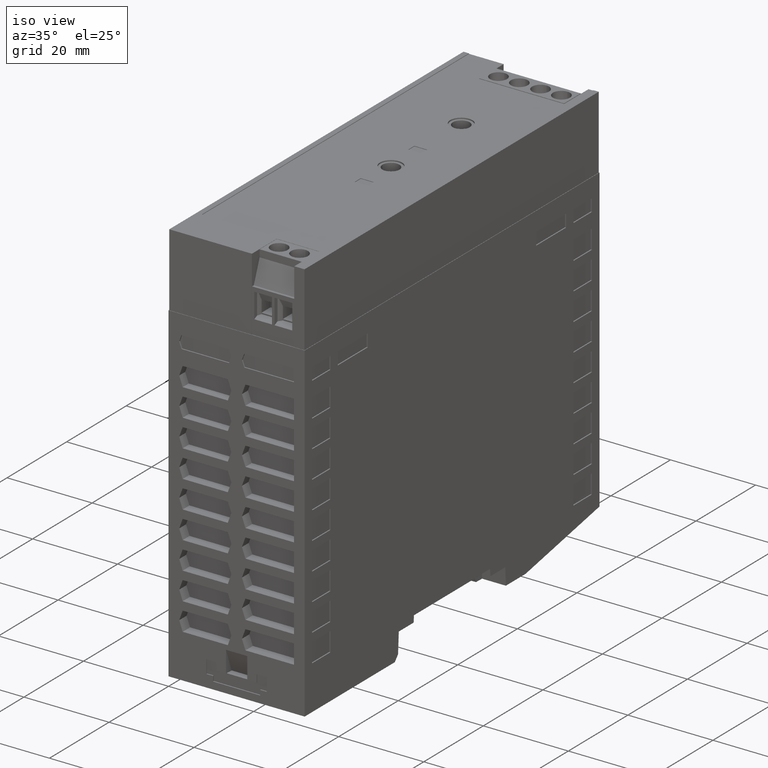
[diagram: clean part render]
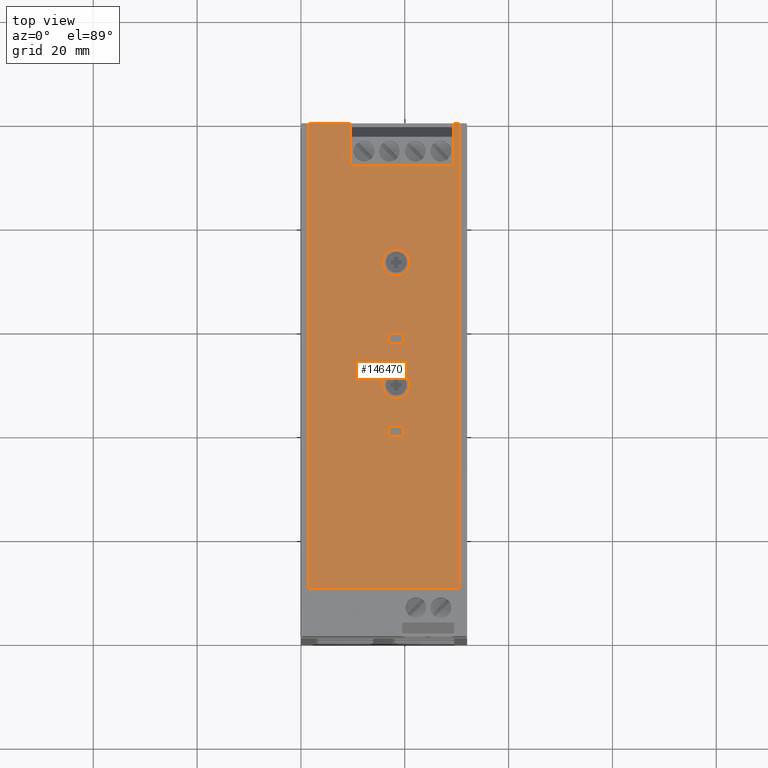
[diagram: tour spotlight — one face highlighted and labeled with its STEP entity id]
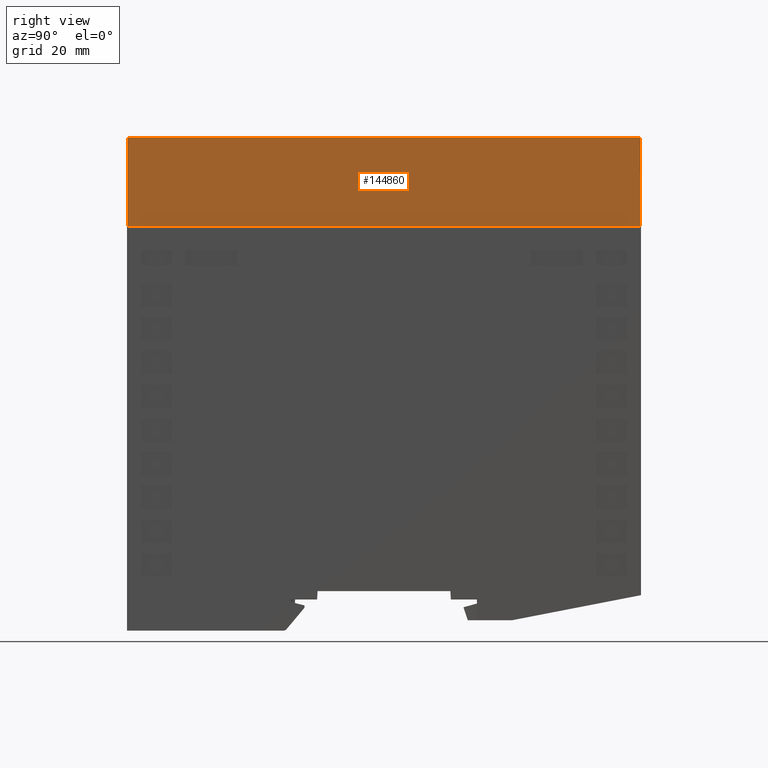
[diagram: tour spotlight — one face highlighted and labeled with its STEP entity id]
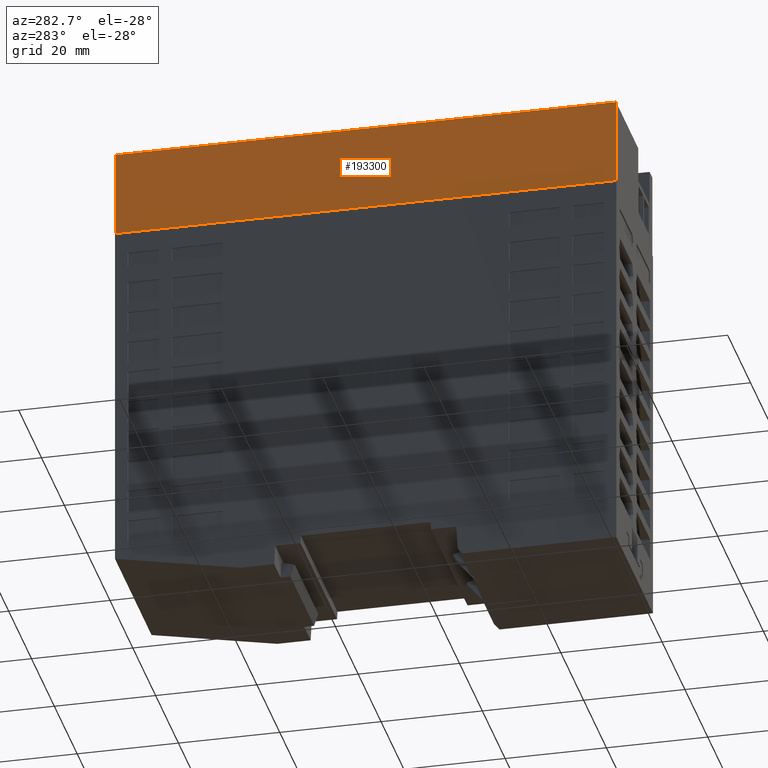
[diagram: tour spotlight — one face highlighted and labeled with its STEP entity id]
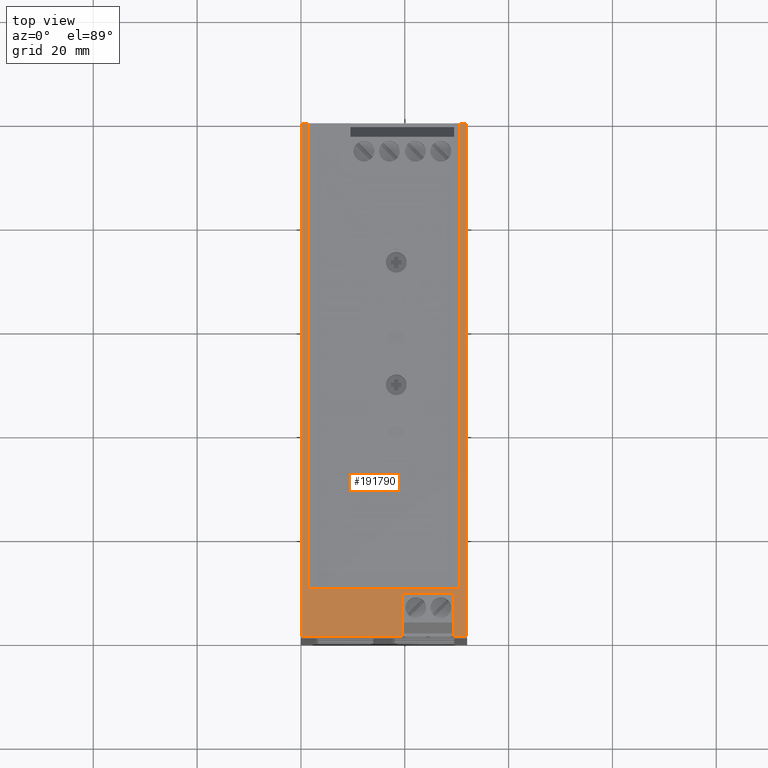
[diagram: tour spotlight — one face highlighted and labeled with its STEP entity id]
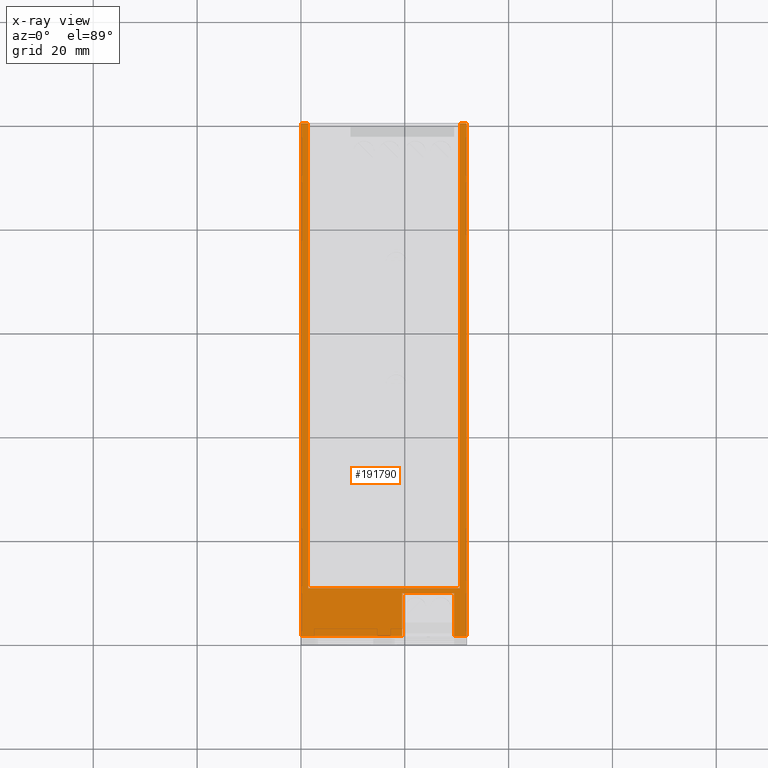
[diagram: x-ray of the same camera — body ghosted, this tour face saturated]
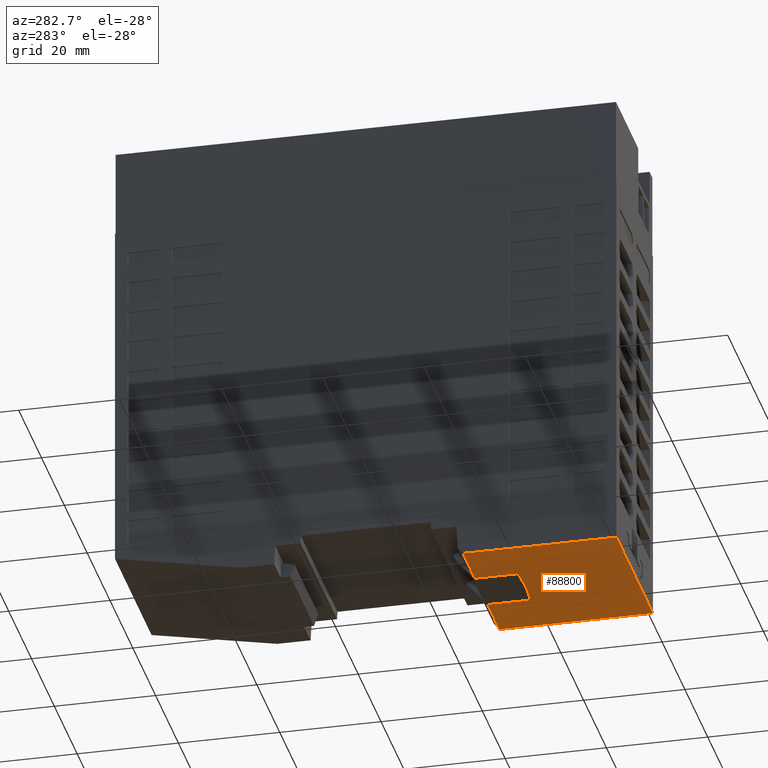
[diagram: tour spotlight — one face highlighted and labeled with its STEP entity id]
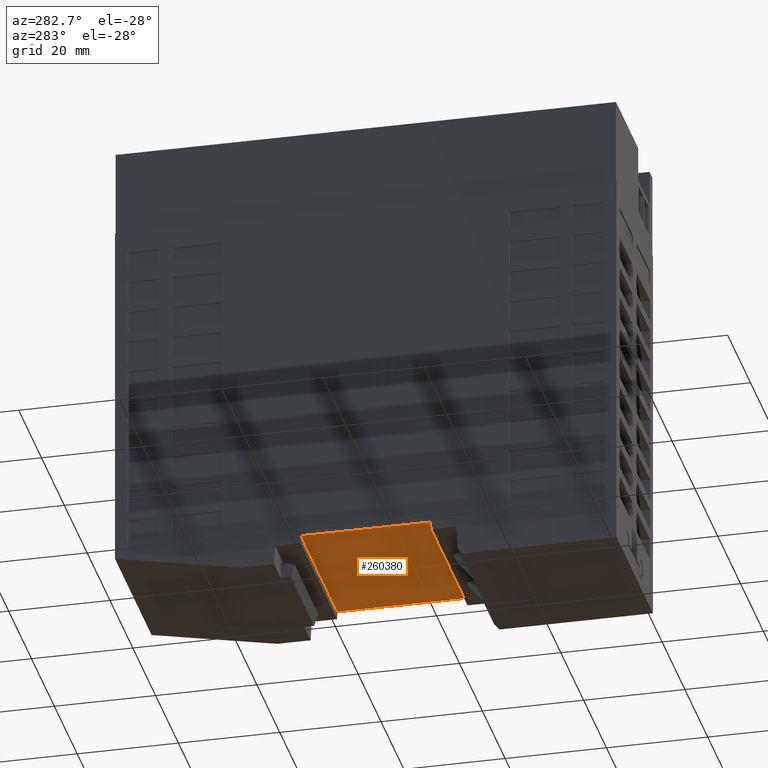
[diagram: tour spotlight — one face highlighted and labeled with its STEP entity id]
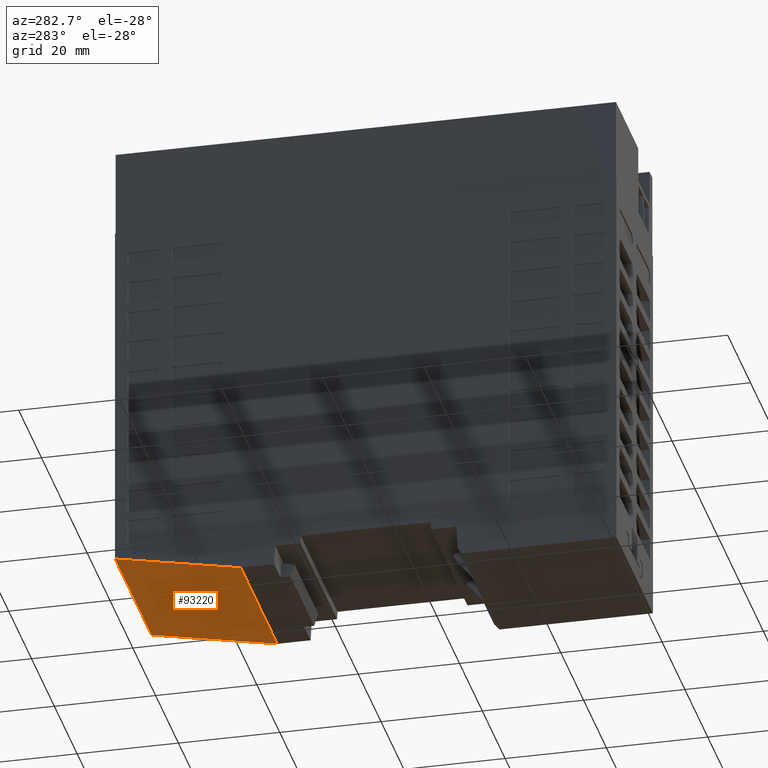
[diagram: tour spotlight — one face highlighted and labeled with its STEP entity id]
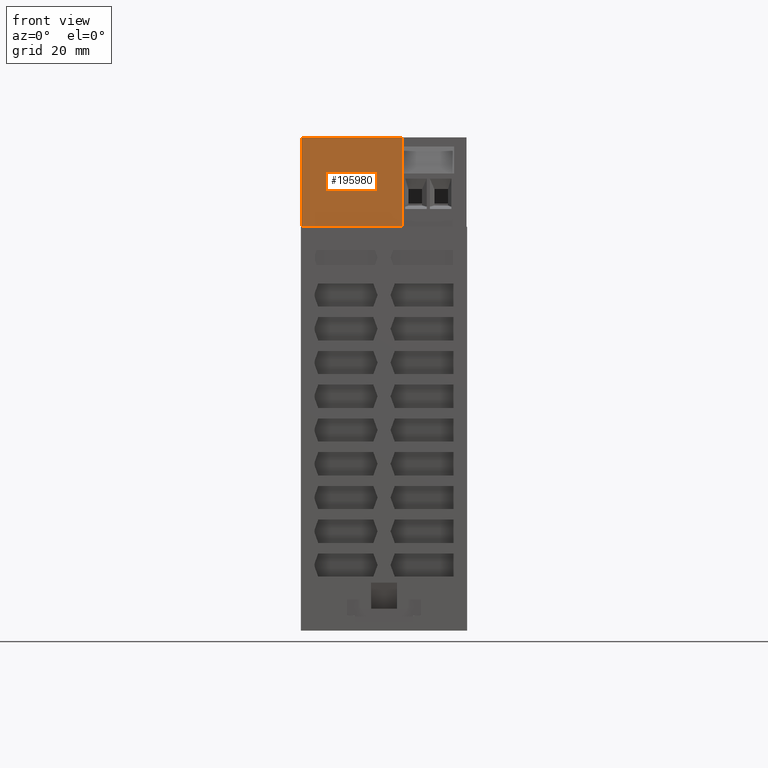
[diagram: tour spotlight — one face highlighted and labeled with its STEP entity id]
A machine part: a face-by-face anatomy tour. The part has 830 B-rep faces; the first image is the clean iso view, then the 8 largest visible faces are spotlighted one at a time (largest first), each with its STEP entity span.

Face 1 — top view, entity #146470. In plain terms, the highlighted planar face has unit normal (0, 0, 1).
Definition (entity closure, byte-faithful):
#93350=CARTESIAN_POINT('',(-13.5,88.9,0.));
#93360=DIRECTION('',(0.,0.,1.));
#93370=VECTOR('',#93360,1.);
#93380=LINE('',#93350,#93370);
#93390=CARTESIAN_POINT('',(-13.5,88.9,46.8095866831076));
#93400=VERTEX_POINT('',#93390);
#93410=CARTESIAN_POINT('',(-13.5,88.9,49.4095866831054));
#93420=VERTEX_POINT('',#93410);
#93430=EDGE_CURVE('',#93400,#93420,#93380,.T.);
#140500=CARTESIAN_POINT('',(-0.849999999999998,88.9,-9.));
#140510=VERTEX_POINT('',#140500);
#140590=CARTESIAN_POINT('',(-0.849999999999998,88.9,-11.));
#140600=VERTEX_POINT('',#140590);
#140630=CARTESIAN_POINT('',(-0.849999999999998,88.9,0.));
#140640=DIRECTION('',(0.,0.,1.));
#140650=VECTOR('',#140640,1.);
#140660=LINE('',#140630,#140650);
#140670=EDGE_CURVE('',#140600,#140510,#140660,.T.);
#141060=CARTESIAN_POINT('',(-14.6104762308475,88.9,49.4095866831055));
#141070=VERTEX_POINT('',#141060);
#141100=CARTESIAN_POINT('',(0.,88.9,49.4095866831055));
#141110=DIRECTION('',(1.,1.38777878078145E-16,8.32667268468867E-17));
#141120=VECTOR('',#141110,1.);
#141130=LINE('',#141100,#141120);
#141140=EDGE_CURVE('',#141070,#93420,#141130,.T.);
#144070=CARTESIAN_POINT('',(-3.85,88.9,-11.));
#144080=VERTEX_POINT('',#144070);
#144110=CARTESIAN_POINT('',(0.,88.9,-11.));
#144120=DIRECTION('',(1.,1.38777878078145E-16,0.));
#144130=VECTOR('',#144120,1.);
#144140=LINE('',#144110,#144130);
#144150=EDGE_CURVE('',#144080,#140600,#144140,.T.);
#144940=CARTESIAN_POINT('',(-10.375,88.9,1.77635683940025E-15));
#144950=DIRECTION('',(-1.38777878078145E-16,1.,0.));
#144960=DIRECTION('',(0.,0.,1.));
#144970=AXIS2_PLACEMENT_3D('',#144940,#144950,#144960);
#144980=PLANE('',#144970);
#144990=CARTESIAN_POINT('',(-0.849999999999998,88.9,0.));
#145000=DIRECTION('',(0.,0.,1.));
#145010=VECTOR('',#145000,1.);
#145020=LINE('',#144990,#145010);
#145030=CARTESIAN_POINT('',(-0.849999999999998,88.9,7.));
#145040=VERTEX_POINT('',#145030);
#145050=CARTESIAN_POINT('',(-0.849999999999998,88.9,9.));
#145060=VERTEX_POINT('',#145050);
#145070=EDGE_CURVE('',#145040,#145060,#145020,.T.);
#145080=ORIENTED_EDGE('',*,*,#145070,.T.);
#145090=CARTESIAN_POINT('',(0.,88.9,7.));
#145100=DIRECTION('',(1.,1.38777878078145E-16,0.));
#145110=VECTOR('',#145100,1.);
#145120=LINE('',#145090,#145110);
#145130=CARTESIAN_POINT('',(-3.85,88.9,7.));
#145140=VERTEX_POINT('',#145130);
#145150=EDGE_CURVE('',#145140,#145040,#145120,.T.);
#145160=ORIENTED_EDGE('',*,*,#145150,.T.);
#145170=CARTESIAN_POINT('',(-3.85,88.9,0.));
#145180=DIRECTION('',(0.,0.,-1.));
#145190=VECTOR('',#145180,1.);
#145200=LINE('',#145170,#145190);
#145210=CARTESIAN_POINT('',(-3.85,88.9,9.));
#145220=VERTEX_POINT('',#145210);
#145230=EDGE_CURVE('',#145220,#145140,#145200,.T.);
#145240=ORIENTED_EDGE('',*,*,#145230,.T.);
#145250=CARTESIAN_POINT('',(0.,88.9,9.));
#145260=DIRECTION('',(-1.,-1.38777878078145E-16,0.));
#145270=VECTOR('',#145260,1.);
#145280=LINE('',#145250,#145270);
#145290=EDGE_CURVE('',#145060,#145220,#145280,.T.);
#145300=ORIENTED_EDGE('',*,*,#145290,.T.);
#145310=EDGE_LOOP('',(#145300,#145240,#145160,#145080));
#145320=FACE_BOUND('',#145310,.T.);
#145330=CARTESIAN_POINT('',(-2.35,88.9,22.6));
#145340=DIRECTION('',(0.,-1.,0.));
#145350=DIRECTION('',(1.,0.,0.));
#145360=AXIS2_PLACEMENT_3D('',#145330,#145340,#145350);
#145370=CIRCLE('',#145360,2.6);
#145380=CARTESIAN_POINT('',(0.250000000000002,88.9,22.6));
#145390=VERTEX_POINT('',#145380);
#145400=CARTESIAN_POINT('',(-4.95,88.9,22.6));
#145410=VERTEX_POINT('',#145400);
#145420=EDGE_CURVE('',#145390,#145410,#145370,.T.);
#145430=ORIENTED_EDGE('',*,*,#145420,.T.);
#145440=EDGE_CURVE('',#145410,#145390,#145370,.T.);
#145450=ORIENTED_EDGE('',*,*,#145440,.T.);
#145460=EDGE_LOOP('',(#145450,#145430));
#145470=FACE_BOUND('',#145460,.T.);
#145480=ORIENTED_EDGE('',*,*,#144150,.T.);
#145490=CARTESIAN_POINT('',(-3.85,88.9,0.));
#145500=DIRECTION('',(0.,0.,-1.));
#145510=VECTOR('',#145500,1.);
#145520=LINE('',#145490,#145510);
#145530=CARTESIAN_POINT('',(-3.85,88.9,-9.));
#145540=VERTEX_POINT('',#145530);
#145550=EDGE_CURVE('',#145540,#144080,#145520,.T.);
#145560=ORIENTED_EDGE('',*,*,#145550,.T.);
#145570=CARTESIAN_POINT('',(0.,88.9,-9.));
#145580=DIRECTION('',(-1.,-1.38777878078145E-16,0.));
#145590=VECTOR('',#145580,1.);
#145600=LINE('',#145570,#145590);
#145610=EDGE_CURVE('',#140510,#145540,#145600,.T.);
#145620=ORIENTED_EDGE('',*,*,#145610,.T.);
#145630=ORIENTED_EDGE('',*,*,#140670,.T.);
#145640=EDGE_LOOP('',(#145630,#145620,#145560,#145480));
#145650=FACE_BOUND('',#145640,.T.);
#145660=CARTESIAN_POINT('',(-2.35,88.9,-0.999999999999998));
#145670=DIRECTION('',(0.,-1.,0.));
#145680=DIRECTION('',(1.,0.,0.));
#145690=AXIS2_PLACEMENT_3D('',#145660,#145670,#145680);
#145700=CIRCLE('',#145690,2.6);
#145710=CARTESIAN_POINT('',(0.250000000000002,88.9,-0.999999999999998));
#145720=VERTEX_POINT('',#145710);
#145730=CARTESIAN_POINT('',(-4.95,88.9,-0.999999999999998));
#145740=VERTEX_POINT('',#145730);
#145750=EDGE_CURVE('',#145720,#145740,#145700,.T.);
#145760=ORIENTED_EDGE('',*,*,#145750,.T.);
#145770=EDGE_CURVE('',#145740,#145720,#145700,.T.);
#145780=ORIENTED_EDGE('',*,*,#145770,.T.);
#145790=EDGE_LOOP('',(#145780,#145760));
#145800=FACE_BOUND('',#145790,.T.);
#145810=CARTESIAN_POINT('',(14.6139683078,88.9,47.9));
#145820=DIRECTION('',(0.,0.,-1.));
#145830=VECTOR('',#145820,1.);
#145840=LINE('',#145810,#145830);
#145850=CARTESIAN_POINT('',(14.6104762308475,88.9,49.4095866831055));
#145860=VERTEX_POINT('',#145850);
#145870=CARTESIAN_POINT('',(14.6104762308475,88.9,-40.2139683078));
#145880=VERTEX_POINT('',#145870);
#145890=EDGE_CURVE('',#145860,#145880,#145840,.T.);
#145900=ORIENTED_EDGE('',*,*,#145890,.T.);
#145910=CARTESIAN_POINT('',(0.,88.9,49.4095866831055));
#145920=DIRECTION('',(1.,1.38777878078145E-16,8.32667268468867E-17));
#145930=VECTOR('',#145920,1.);
#145940=LINE('',#145910,#145930);
#145950=CARTESIAN_POINT('',(6.45,88.9,49.4095866831054));
#145960=VERTEX_POINT('',#145950);
#145970=EDGE_CURVE('',#145960,#145860,#145940,.T.);
#145980=ORIENTED_EDGE('',*,*,#145970,.T.);
#145990=CARTESIAN_POINT('',(6.45,88.9,0.));
#146000=DIRECTION('',(0.,0.,1.));
#146010=VECTOR('',#146000,1.);
#146020=LINE('',#145990,#146010);
#146030=CARTESIAN_POINT('',(6.45,88.9,46.8095866831076));
#146040=VERTEX_POINT('',#146030);
#146050=EDGE_CURVE('',#146040,#145960,#146020,.T.);
#146060=ORIENTED_EDGE('',*,*,#146050,.T.);
#146070=CARTESIAN_POINT('',(6.44999999999999,88.9,0.));
#146080=DIRECTION('',(2.22044604925031E-16,3.69778549322349E-32,-1.));
#146090=VECTOR('',#146080,1.);
#146100=LINE('',#146070,#146090);
#146110=CARTESIAN_POINT('',(6.44999999999998,88.9,41.2095866831079));
#146120=VERTEX_POINT('',#146110);
#146130=EDGE_CURVE('',#146040,#146120,#146100,.T.);
#146140=ORIENTED_EDGE('',*,*,#146130,.F.);
#146150=CARTESIAN_POINT('',(0.,88.9,41.2095866831079));
#146160=DIRECTION('',(-1.,-1.38777878078145E-16,-2.22044604925031E-16));
#146170=VECTOR('',#146160,1.);
#146180=LINE('',#146150,#146170);
#146190=CARTESIAN_POINT('',(-13.5,88.9,41.2095866831079));
#146200=VERTEX_POINT('',#146190);
#146210=EDGE_CURVE('',#146120,#146200,#146180,.T.);
#146220=ORIENTED_EDGE('',*,*,#146210,.F.);
#146230=CARTESIAN_POINT('',(-13.5,88.9,0.));
#146240=DIRECTION('',(-2.22044604925031E-16,-3.69778549322349E-32,1.));
#146250=VECTOR('',#146240,1.);
#146260=LINE('',#146230,#146250);
#146270=EDGE_CURVE('',#146200,#93400,#146260,.T.);
#146280=ORIENTED_EDGE('',*,*,#146270,.F.);
#146290=ORIENTED_EDGE('',*,*,#93430,.F.);
#146300=ORIENTED_EDGE('',*,*,#141140,.T.);
#146310=CARTESIAN_POINT('',(-14.6104762308475,88.9,0.));
#146320=DIRECTION('',(2.16229128575927E-16,2.4666929715261E-32,-1.));
#146330=VECTOR('',#146320,1.);
#146340=LINE('',#146310,#146330);
#146350=CARTESIAN_POINT('',(-14.6104762308475,88.9,-40.2139683078));
#146360=VERTEX_POINT('',#146350);
#146370=EDGE_CURVE('',#141070,#146360,#146340,.T.);
#146380=ORIENTED_EDGE('',*,*,#146370,.F.);
#146390=CARTESIAN_POINT('',(0.,88.9,-40.2139683078));
#146400=DIRECTION('',(-1.,-1.38777878078145E-16,0.));
#146410=VECTOR('',#146400,1.);
#146420=LINE('',#146390,#146410);
#146430=EDGE_CURVE('',#145880,#146360,#146420,.T.);
#146440=ORIENTED_EDGE('',*,*,#146430,.T.);
#146450=EDGE_LOOP('',(#146440,#146380,#146300,#146290,#146280,#146220,
#146140,#146060,#145980,#145900));
#146460=FACE_OUTER_BOUND('',#146450,.T.);
#146470=ADVANCED_FACE('',(#145320,#145470,#145650,#145800,#146460),
#144980,.T.);

Face 2 — right view, entity #144860. In plain terms, the highlighted planar face has unit normal (1, 0, -0).
Definition (entity closure, byte-faithful):
#8870=CARTESIAN_POINT('',(-15.9,71.8,-49.3904133168945));
#8880=VERTEX_POINT('',#8870);
#9030=CARTESIAN_POINT('',(-15.9,89.,-49.3904133168945));
#9040=VERTEX_POINT('',#9030);
#9070=CARTESIAN_POINT('',(-15.9,71.8,-49.3904133168945));
#9080=DIRECTION('',(0.,-1.,1.66533453693773E-16));
#9090=VECTOR('',#9080,1.);
#9100=LINE('',#9070,#9090);
#9110=EDGE_CURVE('',#9040,#8880,#9100,.T.);
#140840=CARTESIAN_POINT('',(-15.9,71.8,49.4095866831055));
#140850=DIRECTION('',(0.,1.,-1.66533453693773E-16));
#140860=VECTOR('',#140850,1.);
#140870=LINE('',#140840,#140860);
#140880=CARTESIAN_POINT('',(-15.9,71.8,49.4095866831055));
#140890=VERTEX_POINT('',#140880);
#140900=CARTESIAN_POINT('',(-15.9,89.,49.4095866831055));
#140910=VERTEX_POINT('',#140900);
#140920=EDGE_CURVE('',#140890,#140910,#140870,.T.);
#144650=CARTESIAN_POINT('',(-15.9,45.3,0.00958668310543942));
#144660=DIRECTION('',(-1.,0.,0.));
#144670=DIRECTION('',(0.,1.66533453693773E-16,1.));
#144680=AXIS2_PLACEMENT_3D('',#144650,#144660,#144670);
#144690=PLANE('',#144680);
#144700=CARTESIAN_POINT('',(-15.9,71.8,-49.4904133168945));
#144710=DIRECTION('',(0.,-1.66533453693773E-16,-1.));
#144720=VECTOR('',#144710,1.);
#144730=LINE('',#144700,#144720);
#144740=EDGE_CURVE('',#140890,#8880,#144730,.T.);
#144750=ORIENTED_EDGE('',*,*,#144740,.F.);
#144760=ORIENTED_EDGE('',*,*,#9110,.T.);
#144770=CARTESIAN_POINT('',(-15.9,89.,0.));
#144780=DIRECTION('',(0.,0.,-1.));
#144790=VECTOR('',#144780,1.);
#144800=LINE('',#144770,#144790);
#144810=EDGE_CURVE('',#140910,#9040,#144800,.T.);
#144820=ORIENTED_EDGE('',*,*,#144810,.T.);
#144830=ORIENTED_EDGE('',*,*,#140920,.T.);
#144840=EDGE_LOOP('',(#144830,#144820,#144760,#144750));
#144850=FACE_OUTER_BOUND('',#144840,.T.);
#144860=ADVANCED_FACE('',(#144850),#144690,.T.);

Face 3 — auxiliary view, entity #193300. In plain terms, the highlighted planar face has unit normal (1, 0, -0).
Definition (entity closure, byte-faithful):
#153460=CARTESIAN_POINT('',(15.9,71.8,49.4095866831055));
#153470=VERTEX_POINT('',#153460);
#153500=CARTESIAN_POINT('',(15.9,71.8,0.00958668310545356));
#153510=DIRECTION('',(-8.32667268468867E-17,1.66533453693773E-16,1.));
#153520=VECTOR('',#153510,1.);
#153530=LINE('',#153500,#153520);
#153540=CARTESIAN_POINT('',(15.9,71.8,-49.3904133168945));
#153550=VERTEX_POINT('',#153540);
#153560=EDGE_CURVE('',#153550,#153470,#153530,.T.);
#191510=CARTESIAN_POINT('',(15.9,89.,-49.3904133168945));
#191520=VERTEX_POINT('',#191510);
#191550=CARTESIAN_POINT('',(15.9,89.,0.));
#191560=DIRECTION('',(8.32667268468867E-17,0.,-1.));
#191570=VECTOR('',#191560,1.);
#191580=LINE('',#191550,#191570);
#191590=CARTESIAN_POINT('',(15.9,89.,49.4095866831055));
#191600=VERTEX_POINT('',#191590);
#191610=EDGE_CURVE('',#191600,#191520,#191580,.T.);
#193090=CARTESIAN_POINT('',(15.9,71.8,49.4095866831055));
#193100=DIRECTION('',(-1.,-1.54074395550981E-33,-8.32667268468867E-17));
#193110=DIRECTION('',(8.32667268468867E-17,-1.66533453693773E-16,-1.));
#193120=AXIS2_PLACEMENT_3D('',#193090,#193100,#193110);
#193130=PLANE('',#193120);
#193140=CARTESIAN_POINT('',(15.9,71.8,-49.3904133168945));
#193150=DIRECTION('',(1.23259516440783E-32,1.,-1.66533453693773E-16));
#193160=VECTOR('',#193150,1.);
#193170=LINE('',#193140,#193160);
#193180=EDGE_CURVE('',#153550,#191520,#193170,.T.);
#193190=ORIENTED_EDGE('',*,*,#193180,.T.);
#193200=ORIENTED_EDGE('',*,*,#153560,.F.);
#193210=CARTESIAN_POINT('',(15.9,71.8,49.4095866831055));
#193220=DIRECTION('',(1.23259516440783E-32,1.,-1.66533453693773E-16));
#193230=VECTOR('',#193220,1.);
#193240=LINE('',#193210,#193230);
#193250=EDGE_CURVE('',#153470,#191600,#193240,.T.);
#193260=ORIENTED_EDGE('',*,*,#193250,.F.);
#193270=ORIENTED_EDGE('',*,*,#191610,.F.);
#193280=EDGE_LOOP('',(#193270,#193260,#193200,#193190));
#193290=FACE_OUTER_BOUND('',#193280,.T.);
#193300=ADVANCED_FACE('',(#193290),#193130,.F.);

Face 4 — top view, entity #191790. An x-ray twin of the same camera follows (body ghosted, this face saturated) — the face is partly hidden behind the body. In plain terms, the highlighted planar face has unit normal (-0, 0, 1).
Definition (entity closure, byte-faithful):
#8950=CARTESIAN_POINT('',(-13.5,89.,-49.3904133168945));
#8960=VERTEX_POINT('',#8950);
#8990=CARTESIAN_POINT('',(0.,89.,-49.3904133168945));
#9000=DIRECTION('',(-1.,-0.,-8.32667268468867E-17));
#9010=VECTOR('',#9000,1.);
#9020=LINE('',#8990,#9010);
#9030=CARTESIAN_POINT('',(-15.9,89.,-49.3904133168945));
#9040=VERTEX_POINT('',#9030);
#9050=EDGE_CURVE('',#8960,#9040,#9020,.T.);
#140900=CARTESIAN_POINT('',(-15.9,89.,49.4095866831055));
#140910=VERTEX_POINT('',#140900);
#140940=CARTESIAN_POINT('',(0.,89.,49.4095866831055));
#140950=DIRECTION('',(1.,0.,8.32667268468867E-17));
#140960=VECTOR('',#140950,1.);
#140970=LINE('',#140940,#140960);
#140980=CARTESIAN_POINT('',(-14.6139683077967,89.,49.4095866831055));
#140990=VERTEX_POINT('',#140980);
#141000=EDGE_CURVE('',#140910,#140990,#140970,.T.);
#144770=CARTESIAN_POINT('',(-15.9,89.,0.));
#144780=DIRECTION('',(0.,0.,-1.));
#144790=VECTOR('',#144780,1.);
#144800=LINE('',#144770,#144790);
#144810=EDGE_CURVE('',#140910,#9040,#144800,.T.);
#151180=CARTESIAN_POINT('',(-13.5,89.,-41.0904133168921));
#151190=VERTEX_POINT('',#151180);
#151220=CARTESIAN_POINT('',(-13.5,89.,0.));
#151230=DIRECTION('',(2.53252698286487E-28,0.,-1.));
#151240=VECTOR('',#151230,1.);
#151250=LINE('',#151220,#151240);
#151260=EDGE_CURVE('',#151190,#8960,#151250,.T.);
#155250=CARTESIAN_POINT('',(14.6139683077967,89.,-40.2139683078));
#155260=VERTEX_POINT('',#155250);
#155290=CARTESIAN_POINT('',(14.6139683077967,89.,0.));
#155300=DIRECTION('',(2.27860081274136E-16,0.,-1.));
#155310=VECTOR('',#155300,1.);
#155320=LINE('',#155290,#155310);
#155330=CARTESIAN_POINT('',(14.6139683077967,89.,49.4095866831055));
#155340=VERTEX_POINT('',#155330);
#155350=EDGE_CURVE('',#155340,#155260,#155320,.T.);
#188910=CARTESIAN_POINT('',(-14.6139683077967,89.,-40.2139683078));
#188920=VERTEX_POINT('',#188910);
#188970=CARTESIAN_POINT('',(-14.6139683077967,89.,0.));
#188980=DIRECTION('',(2.16229128575927E-16,0.,-1.));
#188990=VECTOR('',#188980,1.);
#189000=LINE('',#188970,#188990);
#189010=EDGE_CURVE('',#140990,#188920,#189000,.T.);
#191220=CARTESIAN_POINT('',(0.,89.,0.));
#191230=DIRECTION('',(-0.,1.,0.));
#191240=DIRECTION('',(1.,0.,0.));
#191250=AXIS2_PLACEMENT_3D('',#191220,#191230,#191240);
#191260=PLANE('',#191250);
#191270=ORIENTED_EDGE('',*,*,#141000,.T.);
#191280=ORIENTED_EDGE('',*,*,#144810,.F.);
#191290=ORIENTED_EDGE('',*,*,#9050,.T.);
#191300=ORIENTED_EDGE('',*,*,#151260,.T.);
#191310=CARTESIAN_POINT('',(0.,89.,-41.0904133168921));
#191320=DIRECTION('',(1.,0.,2.22044604925031E-16));
#191330=VECTOR('',#191320,1.);
#191340=LINE('',#191310,#191330);
#191350=CARTESIAN_POINT('',(-3.52512200002532,89.,-41.0904133168921));
#191360=VERTEX_POINT('',#191350);
#191370=EDGE_CURVE('',#151190,#191360,#191340,.T.);
#191380=ORIENTED_EDGE('',*,*,#191370,.F.);
#191390=CARTESIAN_POINT('',(-3.52512200002319,89.,0.));
#191400=DIRECTION('',(-5.16658127517E-14,-0.,-1.));
#191410=VECTOR('',#191400,1.);
#191420=LINE('',#191390,#191410);
#191430=CARTESIAN_POINT('',(-3.52512200002575,89.,-49.3904133168945));
#191440=VERTEX_POINT('',#191430);
#191450=EDGE_CURVE('',#191360,#191440,#191420,.T.);
#191460=ORIENTED_EDGE('',*,*,#191450,.F.);
#191470=CARTESIAN_POINT('',(0.,89.,-49.3904133168945));
#191480=DIRECTION('',(-1.,-0.,-8.32667268468867E-17));
#191490=VECTOR('',#191480,1.);
#191500=LINE('',#191470,#191490);
#191510=CARTESIAN_POINT('',(15.9,89.,-49.3904133168945));
#191520=VERTEX_POINT('',#191510);
#191530=EDGE_CURVE('',#191520,#191440,#191500,.T.);
#191540=ORIENTED_EDGE('',*,*,#191530,.T.);
#191550=CARTESIAN_POINT('',(15.9,89.,0.));
#191560=DIRECTION('',(8.32667268468867E-17,0.,-1.));
#191570=VECTOR('',#191560,1.);
#191580=LINE('',#191550,#191570);
#191590=CARTESIAN_POINT('',(15.9,89.,49.4095866831055));
#191600=VERTEX_POINT('',#191590);
#191610=EDGE_CURVE('',#191600,#191520,#191580,.T.);
#191620=ORIENTED_EDGE('',*,*,#191610,.T.);
#191630=CARTESIAN_POINT('',(0.,89.,49.4095866831055));
#191640=DIRECTION('',(1.,0.,8.32667268468867E-17));
#191650=VECTOR('',#191640,1.);
#191660=LINE('',#191630,#191650);
#191670=EDGE_CURVE('',#155340,#191600,#191660,.T.);
#191680=ORIENTED_EDGE('',*,*,#191670,.T.);
#191690=ORIENTED_EDGE('',*,*,#155350,.F.);
#191700=CARTESIAN_POINT('',(0.,89.,-40.2139683078));
#191710=DIRECTION('',(-1.,0.,0.));
#191720=VECTOR('',#191710,1.);
#191730=LINE('',#191700,#191720);
#191740=EDGE_CURVE('',#155260,#188920,#191730,.T.);
#191750=ORIENTED_EDGE('',*,*,#191740,.F.);
#191760=ORIENTED_EDGE('',*,*,#189010,.T.);
#191770=EDGE_LOOP('',(#191760,#191750,#191690,#191680,#191620,#191540,
#191460,#191380,#191300,#191290,#191280,#191270));
#191780=FACE_OUTER_BOUND('',#191770,.T.);
#191790=ADVANCED_FACE('',(#191780),#191260,.T.);

Face 5 — auxiliary view, entity #88800. In plain terms, the highlighted planar face has unit normal (-0, 0, 1).
Definition (entity closure, byte-faithful):
#920=CARTESIAN_POINT('',(-16.,-5.99999999999999,-19.1887124394516));
#930=VERTEX_POINT('',#920);
#960=CARTESIAN_POINT('',(-16.,-6.,0.));
#970=DIRECTION('',(0.,0.,-1.));
#980=VECTOR('',#970,1.);
#990=LINE('',#960,#980);
#1000=CARTESIAN_POINT('',(-16.,-6.,-49.4904133168945));
#1010=VERTEX_POINT('',#1000);
#1020=EDGE_CURVE('',#930,#1010,#990,.T.);
#22940=CARTESIAN_POINT('',(16.,-6.,-49.4904133168945));
#22950=VERTEX_POINT('',#22940);
#22980=CARTESIAN_POINT('',(16.,-6.,0.));
#22990=DIRECTION('',(0.,0.,-1.));
#23000=VECTOR('',#22990,1.);
#23010=LINE('',#22980,#23000);
#23020=CARTESIAN_POINT('',(16.,-6.,-19.1887124394516));
#23030=VERTEX_POINT('',#23020);
#23040=EDGE_CURVE('',#23030,#22950,#23010,.T.);
#88190=CARTESIAN_POINT('',(-11.25,-6.,-19.19829912255));
#88200=DIRECTION('',(0.,1.,0.));
#88210=DIRECTION('',(0.,0.,1.));
#88220=AXIS2_PLACEMENT_3D('',#88190,#88200,#88210);
#88230=PLANE('',#88220);
#88240=CARTESIAN_POINT('',(0.00611974723706865,-6.,-49.4904133168945));
#88250=DIRECTION('',(1.,0.,0.));
#88260=VECTOR('',#88250,1.);
#88270=LINE('',#88240,#88260);
#88280=EDGE_CURVE('',#1010,#22950,#88270,.T.);
#88290=ORIENTED_EDGE('',*,*,#88280,.T.);
#88300=ORIENTED_EDGE('',*,*,#1020,.T.);
#88310=CARTESIAN_POINT('',(0.00289313098785904,-5.99999999999999,
-19.1887124394516));
#88320=DIRECTION('',(1.,0.,0.));
#88330=VECTOR('',#88320,1.);
#88340=LINE('',#88310,#88330);
#88350=CARTESIAN_POINT('',(-5.54823268721314,-5.99999999999999,
-19.1887124394516));
#88360=VERTEX_POINT('',#88350);
#88370=EDGE_CURVE('',#930,#88360,#88340,.T.);
#88380=ORIENTED_EDGE('',*,*,#88370,.F.);
#88390=CARTESIAN_POINT('',(-5.54823268721314,-6.,0.00958668310545363));
#88400=DIRECTION('',(-1.38777878078145E-16,0.,1.));
#88410=VECTOR('',#88400,1.);
#88420=LINE('',#88390,#88410);
#88430=CARTESIAN_POINT('',(-5.54823268721314,-6.,-27.7032861194034));
#88440=VERTEX_POINT('',#88430);
#88450=EDGE_CURVE('',#88440,#88360,#88420,.T.);
#88460=ORIENTED_EDGE('',*,*,#88450,.T.);
#88470=CARTESIAN_POINT('',(0.00289313098785904,-6.,-27.9904133168966));
#88480=DIRECTION('',(-0.998664984942109,0.,0.0516550854280403));
#88490=VECTOR('',#88480,1.);
#88500=LINE('',#88470,#88490);
#88510=CARTESIAN_POINT('',(0.00289313098734215,-6.,-27.9904133168966));
#88520=VERTEX_POINT('',#88510);
#88530=EDGE_CURVE('',#88520,#88440,#88500,.T.);
#88540=ORIENTED_EDGE('',*,*,#88530,.T.);
#88550=CARTESIAN_POINT('',(0.00289313098785904,-6.,-27.9904133168946));
#88560=DIRECTION('',(-0.998664984942109,-0.,-0.0516550854280406));
#88570=VECTOR('',#88560,1.);
#88580=LINE('',#88550,#88570);
#88590=CARTESIAN_POINT('',(5.55401894918886,-6.,-27.7032861194014));
#88600=VERTEX_POINT('',#88590);
#88610=EDGE_CURVE('',#88600,#88520,#88580,.T.);
#88620=ORIENTED_EDGE('',*,*,#88610,.T.);
#88630=CARTESIAN_POINT('',(5.55401894918886,-6.,0.00958668310545363));
#88640=DIRECTION('',(1.38777878078145E-16,0.,-1.));
#88650=VECTOR('',#88640,1.);
#88660=LINE('',#88630,#88650);
#88670=CARTESIAN_POINT('',(5.55401894918886,-5.99999999999999,
-19.1887124394516));
#88680=VERTEX_POINT('',#88670);
#88690=EDGE_CURVE('',#88680,#88600,#88660,.T.);
#88700=ORIENTED_EDGE('',*,*,#88690,.T.);
#88710=CARTESIAN_POINT('',(0.00289313098785904,-5.99999999999999,
-19.1887124394516));
#88720=DIRECTION('',(1.,0.,0.));
#88730=VECTOR('',#88720,1.);
#88740=LINE('',#88710,#88730);
#88750=EDGE_CURVE('',#88680,#23030,#88740,.T.);
#88760=ORIENTED_EDGE('',*,*,#88750,.F.);
#88770=ORIENTED_EDGE('',*,*,#23040,.F.);
#88780=EDGE_LOOP('',(#88770,#88760,#88700,#88620,#88540,#88460,#88380,
#88300,#88290));
#88790=FACE_OUTER_BOUND('',#88780,.T.);
#88800=ADVANCED_FACE('',(#88790),#88230,.F.);

Face 6 — auxiliary view, entity #260380. In plain terms, the highlighted planar face has unit normal (-0, 0, 1).
Definition (entity closure, byte-faithful):
#520=CARTESIAN_POINT('',(-16.,1.59999999999999,12.7999999999964));
#530=VERTEX_POINT('',#520);
#560=CARTESIAN_POINT('',(-16.,1.59999999999999,-12.23062125997));
#570=DIRECTION('',(0.,0.,1.));
#580=VECTOR('',#570,1.);
#590=LINE('',#560,#580);
#600=CARTESIAN_POINT('',(-16.,1.59999999999999,-12.790413316891));
#610=VERTEX_POINT('',#600);
#620=EDGE_CURVE('',#610,#530,#590,.T.);
#23340=CARTESIAN_POINT('',(16.,1.59999999999999,-12.790413316891));
#23350=VERTEX_POINT('',#23340);
#23380=CARTESIAN_POINT('',(16.,1.59999999999999,0.));
#23390=DIRECTION('',(0.,0.,-1.));
#23400=VECTOR('',#23390,1.);
#23410=LINE('',#23380,#23400);
#23420=CARTESIAN_POINT('',(16.,1.59999999999999,12.7999999999964));
#23430=VERTEX_POINT('',#23420);
#23440=EDGE_CURVE('',#23430,#23350,#23410,.T.);
#91580=CARTESIAN_POINT('',(0.,1.60000000000001,12.7999999999964));
#91590=DIRECTION('',(1.,0.,0.));
#91600=VECTOR('',#91590,1.);
#91610=LINE('',#91580,#91600);
#91620=EDGE_CURVE('',#530,#23430,#91610,.T.);
#193440=CARTESIAN_POINT('',(0.00289313098785904,1.59999999999999,
-12.790413316891));
#193450=DIRECTION('',(1.,0.,0.));
#193460=VECTOR('',#193450,1.);
#193470=LINE('',#193440,#193460);
#193480=EDGE_CURVE('',#610,#23350,#193470,.T.);
#260270=CARTESIAN_POINT('',(-11.25,1.59999999999999,12.7999999999964));
#260280=DIRECTION('',(0.,1.,0.));
#260290=DIRECTION('',(0.,0.,1.));
#260300=AXIS2_PLACEMENT_3D('',#260270,#260280,#260290);
#260310=PLANE('',#260300);
#260320=ORIENTED_EDGE('',*,*,#193480,.T.);
#260330=ORIENTED_EDGE('',*,*,#620,.F.);
#260340=ORIENTED_EDGE('',*,*,#91620,.F.);
#260350=ORIENTED_EDGE('',*,*,#23440,.F.);
#260360=EDGE_LOOP('',(#260350,#260340,#260330,#260320));
#260370=FACE_OUTER_BOUND('',#260360,.T.);
#260380=ADVANCED_FACE('',(#260370),#260310,.F.);

Face 7 — auxiliary view, entity #93220. In plain terms, the highlighted planar face has unit normal (0, -0.1908, 0.9816).
Definition (entity closure, byte-faithful):
#120=CARTESIAN_POINT('',(-16.,0.822495129039766,49.5095866831055));
#130=VERTEX_POINT('',#120);
#160=CARTESIAN_POINT('',(-16.,-8.80119363570036,0.));
#170=DIRECTION('',(0.,0.190808995376495,0.981627183447674));
#180=VECTOR('',#170,1.);
#190=LINE('',#160,#180);
#200=CARTESIAN_POINT('',(-16.,-4.,24.7));
#210=VERTEX_POINT('',#200);
#220=EDGE_CURVE('',#210,#130,#190,.T.);
#23740=CARTESIAN_POINT('',(16.,-4.,24.7));
#23750=VERTEX_POINT('',#23740);
#23780=CARTESIAN_POINT('',(16.,-8.80119363570036,0.));
#23790=DIRECTION('',(0.,-0.190808995376495,-0.981627183447674));
#23800=VECTOR('',#23790,1.);
#23810=LINE('',#23780,#23800);
#23820=CARTESIAN_POINT('',(16.,0.822495129039751,49.5095866831055));
#23830=VERTEX_POINT('',#23820);
#23840=EDGE_CURVE('',#23830,#23750,#23810,.T.);
#93010=CARTESIAN_POINT('',(-11.25,0.820631666614119,49.5));
#93020=DIRECTION('',(0.,0.981627183447674,-0.190808995376495));
#93030=DIRECTION('',(0.,0.190808995376495,0.981627183447674));
#93040=AXIS2_PLACEMENT_3D('',#93010,#93020,#93030);
#93050=PLANE('',#93040);
#93060=ORIENTED_EDGE('',*,*,#220,.F.);
#93070=CARTESIAN_POINT('',(0.,0.822495129039766,49.5095866831055));
#93080=DIRECTION('',(-1.,0.,0.));
#93090=VECTOR('',#93080,1.);
#93100=LINE('',#93070,#93090);
#93110=EDGE_CURVE('',#23830,#130,#93100,.T.);
#93120=ORIENTED_EDGE('',*,*,#93110,.T.);
#93130=ORIENTED_EDGE('',*,*,#23840,.F.);
#93140=CARTESIAN_POINT('',(0.,-4.00000000000001,24.7));
#93150=DIRECTION('',(1.,0.,0.));
#93160=VECTOR('',#93150,1.);
#93170=LINE('',#93140,#93160);
#93180=EDGE_CURVE('',#210,#23750,#93170,.T.);
#93190=ORIENTED_EDGE('',*,*,#93180,.T.);
#93200=EDGE_LOOP('',(#93190,#93130,#93120,#93060));
#93210=FACE_OUTER_BOUND('',#93200,.T.);
#93220=ADVANCED_FACE('',(#93210),#93050,.F.);

Face 8 — front view, entity #195980. In plain terms, the highlighted planar face has unit normal (-0, 1, 0).
Definition (entity closure, byte-faithful):
#8760=CARTESIAN_POINT('',(15.9,71.8,-49.3904133168945));
#8770=DIRECTION('',(-8.32667268468867E-17,1.66533453693773E-16,1.));
#8780=DIRECTION('',(-1.,-1.54074395550981E-33,-8.32667268468867E-17));
#8790=AXIS2_PLACEMENT_3D('',#8760,#8770,#8780);
#8800=PLANE('',#8790);
#153540=CARTESIAN_POINT('',(15.9,71.8,-49.3904133168945));
#153550=VERTEX_POINT('',#153540);
#153580=CARTESIAN_POINT('',(0.,71.8,-49.3904133168945));
#153590=DIRECTION('',(1.,0.,8.32667268468867E-17));
#153600=VECTOR('',#153590,1.);
#153610=LINE('',#153580,#153600);
#153620=CARTESIAN_POINT('',(-3.52512200002602,71.8,-49.3904133168945));
#153630=VERTEX_POINT('',#153620);
#153640=EDGE_CURVE('',#153630,#153550,#153610,.T.);
#191430=CARTESIAN_POINT('',(-3.52512200002575,89.,-49.3904133168945));
#191440=VERTEX_POINT('',#191430);
#191470=CARTESIAN_POINT('',(0.,89.,-49.3904133168945));
#191480=DIRECTION('',(-1.,-0.,-8.32667268468867E-17));
#191490=VECTOR('',#191480,1.);
#191500=LINE('',#191470,#191490);
#191510=CARTESIAN_POINT('',(15.9,89.,-49.3904133168945));
#191520=VERTEX_POINT('',#191510);
#191530=EDGE_CURVE('',#191520,#191440,#191500,.T.);
#193140=CARTESIAN_POINT('',(15.9,71.8,-49.3904133168945));
#193150=DIRECTION('',(1.23259516440783E-32,1.,-1.66533453693773E-16));
#193160=VECTOR('',#193150,1.);
#193170=LINE('',#193140,#193160);
#193180=EDGE_CURVE('',#153550,#191520,#193170,.T.);
#195870=ORIENTED_EDGE('',*,*,#153640,.F.);
#195880=ORIENTED_EDGE('',*,*,#193180,.F.);
#195890=ORIENTED_EDGE('',*,*,#191530,.F.);
#195900=CARTESIAN_POINT('',(-3.52512200002602,71.8,-49.3904133168945));
#195910=DIRECTION('',(-1.57751373625647E-14,-1.,1.66533453693772E-16));
#195920=VECTOR('',#195910,1.);
#195930=LINE('',#195900,#195920);
#195940=EDGE_CURVE('',#191440,#153630,#195930,.T.);
#195950=ORIENTED_EDGE('',*,*,#195940,.F.);
#195960=EDGE_LOOP('',(#195950,#195890,#195880,#195870));
#195970=FACE_OUTER_BOUND('',#195960,.T.);
#195980=ADVANCED_FACE('',(#195970),#8800,.F.);